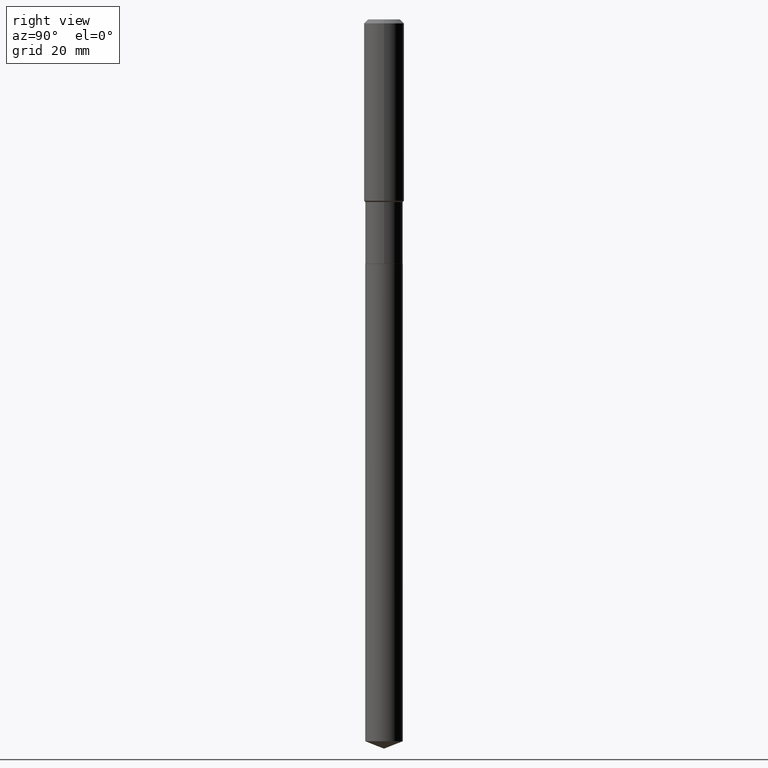
[diagram: clean part render]
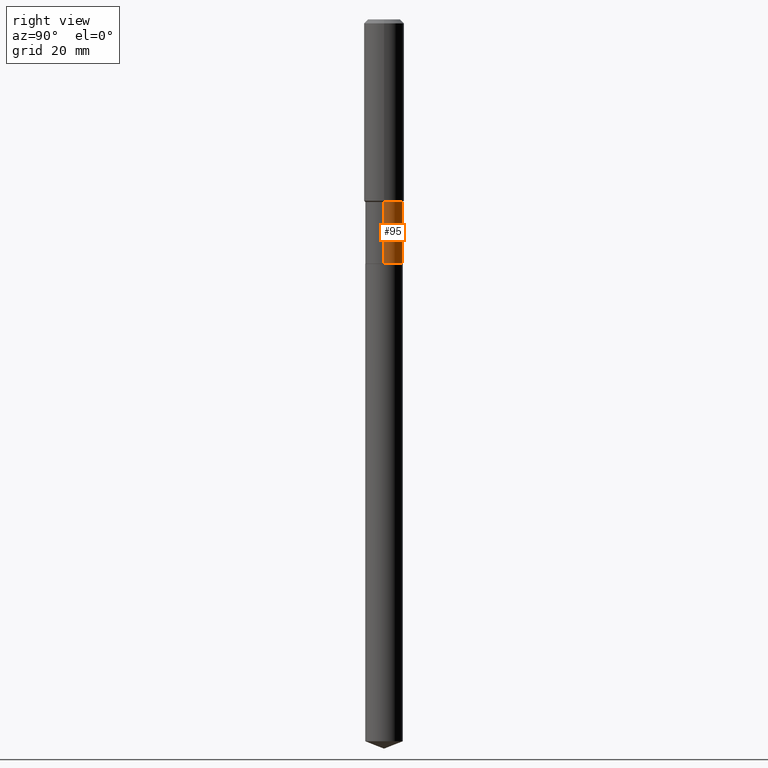
[diagram: same view with one face highlighted and labeled with its STEP entity id]
A machine part, right view. The second image highlights one B-rep face of the part: STEP entity #95.
In plain terms, the highlighted cylindrical surface (edge-blend (fillet) strip) has radius 4.6736 mm, axis along (-0, 0, 1).
Its self-contained STEP definition (entity closure, byte-faithful):
#5 = AXIS2_PLACEMENT_3D ( 'NONE', #320, #175, #178 ) ;
#7 = EDGE_LOOP ( 'NONE', ( #153, #81, #277, #161 ) ) ;
#16 = CARTESIAN_POINT ( 'NONE',  ( -0.1839999999999999969, -6.018252937295160618E-15, -2.401499999999999968 ) ) ;
#18 = DIRECTION ( 'NONE',  ( -2.445468806185136597E-29, 3.491481338843145583E-15, 1.000000000000000000 ) ) ;
#21 = AXIS2_PLACEMENT_3D ( 'NONE', #99, #93, #469 ) ;
#27 = EDGE_CURVE ( 'NONE', #243, #379, #434, .T. ) ;
#48 = LINE ( 'NONE', #319, #107 ) ;
#50 = VERTEX_POINT ( 'NONE', #16 ) ;
#70 = EDGE_CURVE ( 'NONE', #488, #50, #94, .T. ) ;
#81 = ORIENTED_EDGE ( 'NONE', *, *, #312, .T. ) ;
#93 = DIRECTION ( 'NONE',  ( -2.445468806185136597E-29, 3.491481338843145583E-15, 1.000000000000000000 ) ) ;
#94 = CIRCLE ( 'NONE', #294, 0.1839999999999999969 ) ;
#95 = ADVANCED_FACE ( 'NONE', ( #329 ), #219, .T. ) ;
#99 = CARTESIAN_POINT ( 'NONE',  ( 4.389127413341083429E-29, -6.266510706955677702E-15, -1.794800000000000173 ) ) ;
#107 = VECTOR ( 'NONE', #465, 39.37007874015748143 ) ;
#108 = VECTOR ( 'NONE', #227, 39.37007874015748143 ) ;
#153 = ORIENTED_EDGE ( 'NONE', *, *, #70, .T. ) ;
#161 = ORIENTED_EDGE ( 'NONE', *, *, #485, .F. ) ;
#175 = DIRECTION ( 'NONE',  ( -2.445468806185136597E-29, 3.491481338843145583E-15, 1.000000000000000000 ) ) ;
#178 = DIRECTION ( 'NONE',  ( 1.000000000000000000, -6.982962677686265922E-15, 4.876176775795935793E-29 ) ) ;
#213 = CARTESIAN_POINT ( 'NONE',  ( 5.872793338053605564E-29, -8.384792435231812174E-15, -2.401499999999999968 ) ) ;
#219 = CYLINDRICAL_SURFACE ( 'NONE', #5, 0.1839999999999999691 ) ;
#227 = DIRECTION ( 'NONE',  ( -2.445468806185136877E-29, 3.491481338843145188E-15, 1.000000000000000000 ) ) ;
#243 = VERTEX_POINT ( 'NONE', #424 ) ;
#265 = CARTESIAN_POINT ( 'NONE',  ( 0.1839999999999999691, -1.284865132694272775E-15, 8.972165267464520289E-30 ) ) ;
#277 = ORIENTED_EDGE ( 'NONE', *, *, #27, .F. ) ;
#294 = AXIS2_PLACEMENT_3D ( 'NONE', #213, #18, #475 ) ;
#312 = EDGE_CURVE ( 'NONE', #50, #379, #48, .T. ) ;
#319 = CARTESIAN_POINT ( 'NONE',  ( -0.1839999999999999691, 1.307398633798584123E-15, -9.050840566069026560E-30 ) ) ;
#320 = CARTESIAN_POINT ( 'NONE',  ( 0.000000000000000000, 0.000000000000000000, 0.000000000000000000 ) ) ;
#329 = FACE_OUTER_BOUND ( 'NONE', #7, .T. ) ;
#337 = LINE ( 'NONE', #265, #108 ) ;
#379 = VERTEX_POINT ( 'NONE', #477 ) ;
#382 = CARTESIAN_POINT ( 'NONE',  ( 0.1839999999999999969, -9.669657567926086132E-15, -2.401499999999999968 ) ) ;
#424 = CARTESIAN_POINT ( 'NONE',  ( 0.1839999999999999414, -7.551375839649950871E-15, -1.794800000000000173 ) ) ;
#434 = CIRCLE ( 'NONE', #21, 0.1839999999999999414 ) ;
#465 = DIRECTION ( 'NONE',  ( -2.445468806185136877E-29, 3.491481338843145188E-15, 1.000000000000000000 ) ) ;
#469 = DIRECTION ( 'NONE',  ( 1.000000000000000000, -6.982962677686265922E-15, 0.000000000000000000 ) ) ;
#475 = DIRECTION ( 'NONE',  ( 1.000000000000000000, -6.982962677686264344E-15, 0.000000000000000000 ) ) ;
#477 = CARTESIAN_POINT ( 'NONE',  ( -0.1839999999999999414, -6.018252937295160618E-15, -1.794800000000000173 ) ) ;
#485 = EDGE_CURVE ( 'NONE', #488, #243, #337, .T. ) ;
#488 = VERTEX_POINT ( 'NONE', #382 ) ;